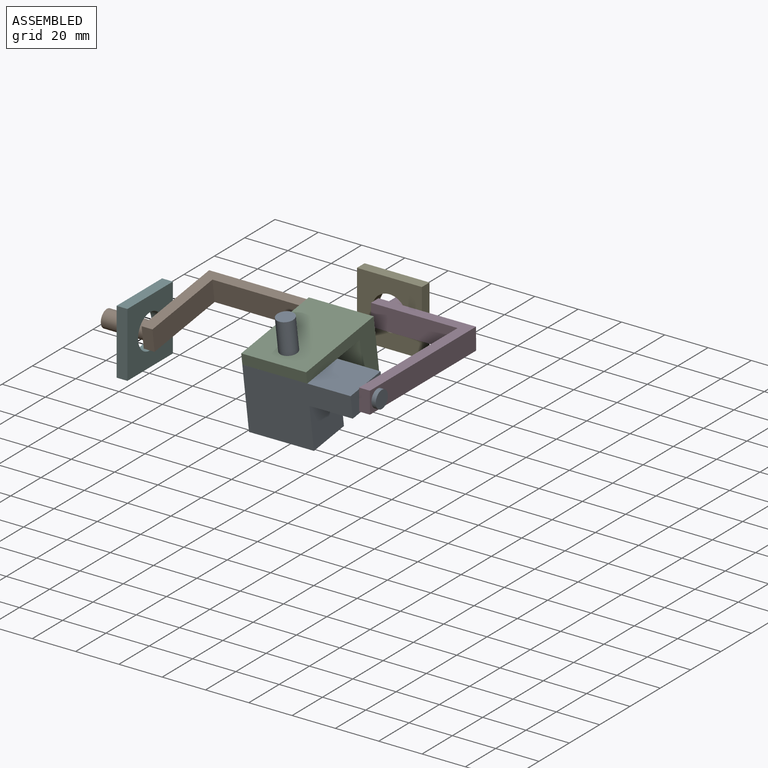
[diagram: assembled view]
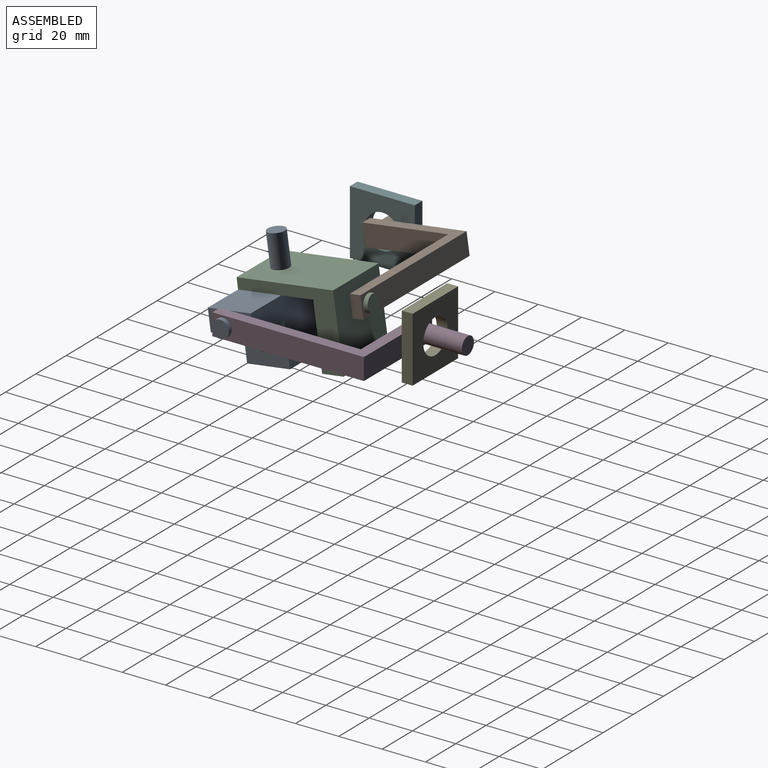
[diagram: assembled view, second angle]
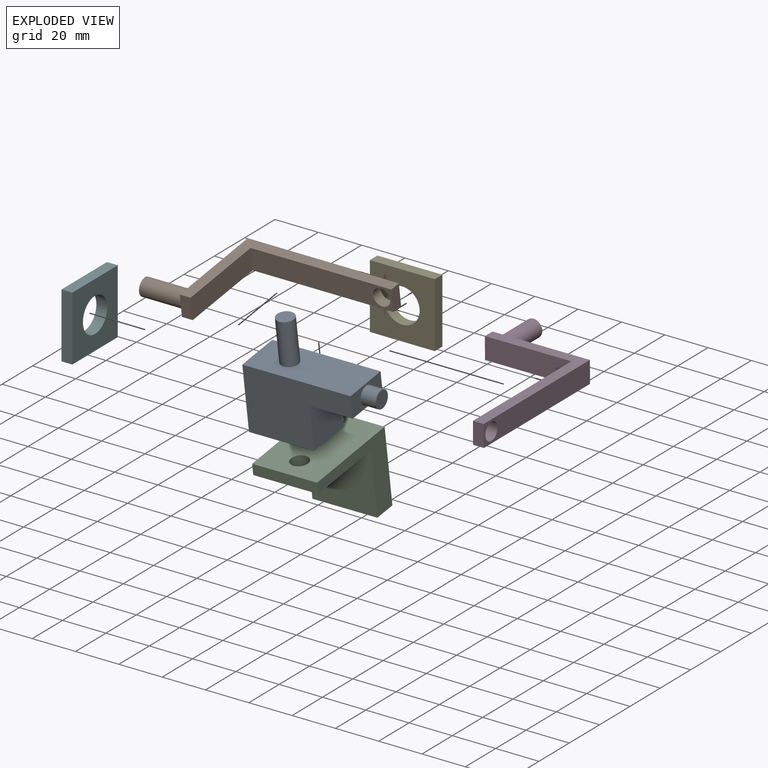
[diagram: exploded view]
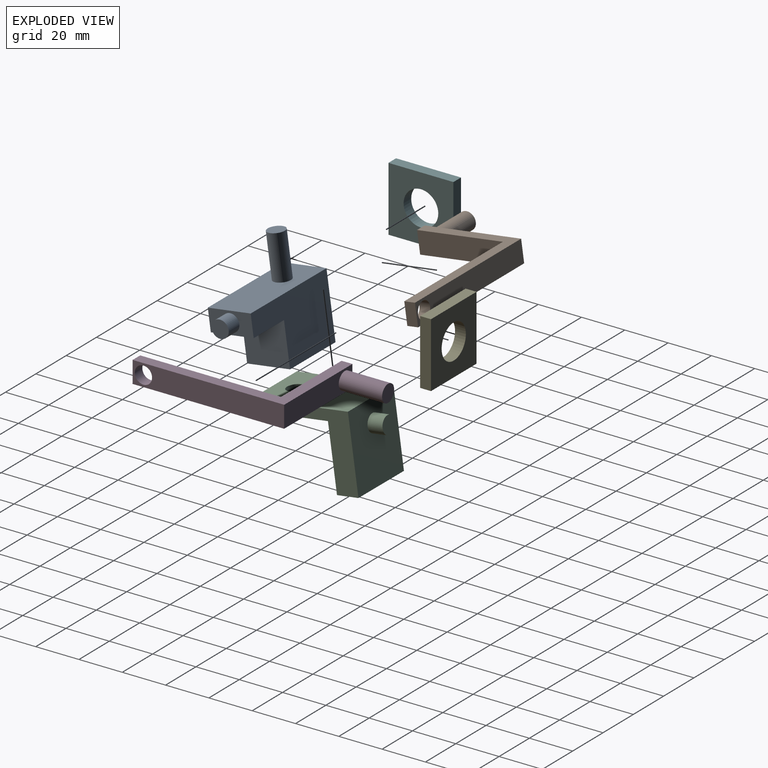
[diagram: exploded view, second angle]
ASSEMBLY  parts=6 mates=10
PART A: 12 faces, bbox 57x20x50 mm
  f0: plane 30x20mm, normal (0,0,-1), area 600mm2, adj f1,f5,f6,f7
  f1: plane 30x20mm, normal (-1,0,0), area 600mm2, adj f0,f2,f6,f7
  f2: plane 50x20mm, normal (0,0,1), area 949.7mm2, adj f1,f3,f6,f7,f10
  f3: plane 20x10mm, normal (1,0,0), area 149.7mm2, adj f2,f4,f6,f7,f8
  f4: plane 20x20mm, normal (0,0,-1), area 400mm2, adj f3,f5,f6,f7
  f5: plane 20x20mm, normal (1,0,0), area 400mm2, adj f0,f4,f6,f7
  f6: plane 50x30mm, normal (0,1,0), area 1100mm2, adj f0,f1,f2,f3,f4,f5
  f7: plane 50x30mm, normal (0,-1,0), area 1100mm2, adj f0,f1,f2,f3,f4,f5
  f8: cylinder r=4mm len=8mm, axis (-1,0,0), area 175.9mm2, adj f3,f9
  f9: plane 8x8mm, normal (1,0,0), area 50.3mm2, adj f8
  f10: cylinder r=4mm len=20mm, axis (0,0,-1), area 502.7mm2, adj f2,f11
  f11: plane 8x8mm, normal (0,0,1), area 50.3mm2, adj f10
PART B: 11 faces, bbox 90x10x45 mm
  f0: plane 10x5mm, normal (-1,0,0), area 50mm2, adj f1,f5,f6,f7
  f1: plane 70x10mm, normal (0,0,-1), area 649.7mm2, adj f0,f2,f6,f7,f8
  f2: plane 45x10mm, normal (1,0,0), area 399.7mm2, adj f1,f3,f6,f7,f9
  f3: plane 10x5mm, normal (0,0,1), area 50mm2, adj f2,f4,f6,f7
  f4: plane 40x10mm, normal (-1,0,0), area 400mm2, adj f3,f5,f6,f7
  f5: plane 65x10mm, normal (0,0,1), area 599.7mm2, adj f0,f4,f6,f7,f8
  f6: plane 70x45mm, normal (0,-1,0), area 550mm2, adj f0,f1,f2,f3,f4,f5
  f7: plane 70x45mm, normal (0,1,0), area 550mm2, adj f0,f1,f2,f3,f4,f5
  f8: cylinder r=4mm len=8mm, axis (0,0,-1), area 125.7mm2, adj f1,f5
  f9: cylinder r=4mm len=20mm, axis (-1,0,0), area 502.7mm2, adj f2,f10
  f10: plane 8x8mm, normal (1,0,0), area 50.3mm2, adj f9
PART C: 11 faces, bbox 30x35x52 mm
  f0: plane 30x5mm, normal (0,0,-1), area 150mm2, adj f1,f5,f6,f7
  f1: plane 35x30mm, normal (0,1,0), area 999.7mm2, adj f0,f2,f6,f7,f8
  f2: plane 30x30mm, normal (0,0,-1), area 900mm2, adj f1,f3,f6,f7
  f3: plane 30x10mm, normal (0,1,0), area 300mm2, adj f2,f4,f6,f7
  f4: plane 35x30mm, normal (0,0,1), area 999.7mm2, adj f3,f5,f6,f7,f9
  f5: plane 45x30mm, normal (0,-1,0), area 1299.7mm2, adj f0,f4,f6,f7,f8
  f6: plane 45x35mm, normal (1,0,0), area 525mm2, adj f0,f1,f2,f3,f4,f5
  f7: plane 45x35mm, normal (-1,0,0), area 525mm2, adj f0,f1,f2,f3,f4,f5
  f8: cylinder r=4mm len=8mm, axis (0,-1,0), area 125.7mm2, adj f1,f5
  f9: cylinder r=4mm len=8mm, axis (0,0,-1), area 175.9mm2, adj f4,f10
  f10: plane 8x8mm, normal (0,0,1), area 50.3mm2, adj f9
PART D: same geometry as B
PART E: 7 faces, bbox 30x5x30 mm
  f0: plane 30x5mm, normal (1,0,0), area 150mm2, adj f1,f3,f4,f5
  f1: plane 30x5mm, normal (0,0,1), area 150mm2, adj f0,f2,f4,f5
  f2: plane 30x5mm, normal (-1,0,0), area 150mm2, adj f1,f3,f4,f5
  f3: plane 30x5mm, normal (0,0,-1), area 150mm2, adj f0,f2,f4,f5
  f4: plane 30x30mm, normal (0,-1,0), area 698.9mm2, adj f0,f1,f2,f3,f6
  f5: plane 30x30mm, normal (0,1,0), area 698.9mm2, adj f0,f1,f2,f3,f6
  f6: cylinder r=8mm len=16mm, axis (0,-1,0), area 251.3mm2, adj f4,f5
PART F: same geometry as E
PLACE A rot(axis=(1,-0.03,0),8.1deg) t=(47.92,74.41,-9.26)mm
PLACE B rot(axis=(0,-0.76,0.66),180deg) t=(37.9,123.91,-2.23)mm
PLACE C rot(axis=(-1,0,0),81.9deg) t=(18.05,119.06,-42.58)mm
PLACE D rot(axis=(-0.58,-0.58,0.58),120.1deg) t=(72.91,78.6,-7.8)mm
PLACE E rot(axis=(-0.35,0.94,0),0deg) t=(47.9,153.6,-17.95)mm fixed
PLACE F rot(axis=(-0.71,-0.71,0),180deg) t=(-32.1,98.6,12.05)mm fixed
MATE planar D.f5 <-> A.f3  axis (-1,0,0) through (67.9,113.41,-2.82)mm
MATE planar E.f4 <-> D.f2  axis (0,-1,0) through (32.9,148.6,12.05)mm
MATE cylindrical A.f10 <-> C.f8  axis (0,-0.14,0.99) through (32.81,80.06,21.8)mm
MATE planar C.f1 <-> A.f2  axis (0,0.14,-0.99) through (32.88,90.69,3.12)mm
MATE cylindrical D.f8 <-> A.f8  axis (1,0,0) through (72.9,83.6,-2.8)mm
MATE cylindrical E.f6 <-> D.f9  axis (0,-1,0) through (32.9,148.6,-2.95)mm
MATE cylindrical F.f6 <-> B.f9  axis (1,0,0) through (-32.1,83.6,-2.95)mm
MATE planar C.f4 <-> B.f5  axis (0,0.99,0.14) through (32.98,121.79,-22.74)mm
MATE planar B.f2 <-> F.f5  axis (-1,0,0) through (-32.1,123.91,-2.23)mm
MATE cylindrical C.f9 <-> B.f8  axis (0,0.99,0.14) through (32.9,125.18,3)mm
